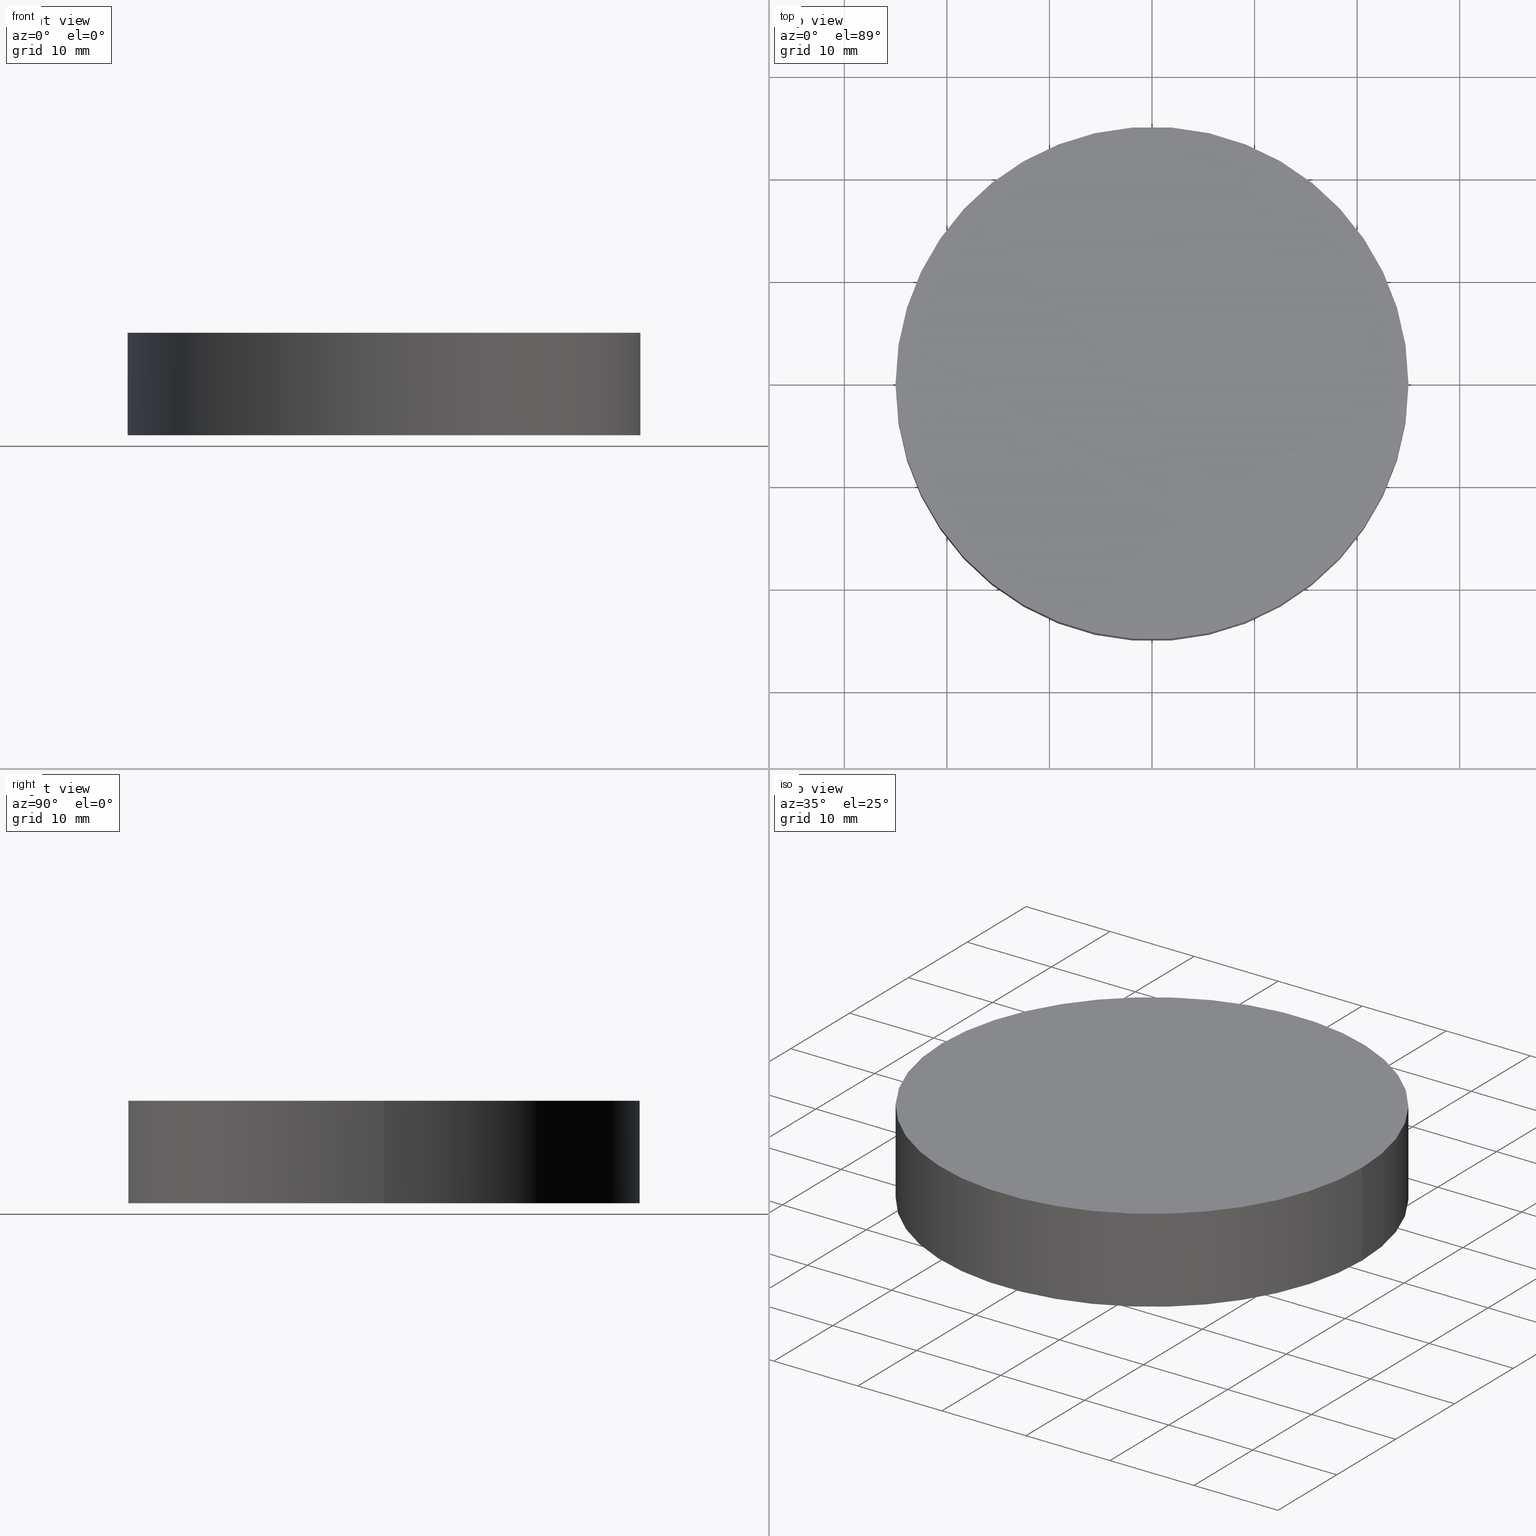
[diagram: canonical four-view strip — front | top / right | iso, engineering-drawing reading convention]
A machine part, canonical four-view strip (front | top / right | iso — engineering-drawing reading convention). The complete STEP part file that produces these views, byte-faithful:
ISO-10303-21;
HEADER;
FILE_DESCRIPTION (( 'STEP AP203' ),
    '1' );
FILE_NAME ('416009.STEP',
    '2019-08-21T07:05:28',
    ( '' ),
    ( '' ),
    'SwSTEP 2.0',
    'SolidWorks 2016',
    '' );
FILE_SCHEMA (( 'CONFIG_CONTROL_DESIGN' ));
ENDSEC;

DATA;
#1 = APPROVAL_PERSON_ORGANIZATION ( #207, #44, #176 ) ;
#2 = COORDINATED_UNIVERSAL_TIME_OFFSET ( 8, 0, .AHEAD. ) ;
#3 = AXIS2_PLACEMENT_3D ( 'NONE', #193, #73, #54 ) ;
#4 = PLANE ( 'NONE',  #58 ) ;
#5 =( NAMED_UNIT ( * ) SI_UNIT ( $, .STERADIAN. ) SOLID_ANGLE_UNIT ( ) );
#6 = LOCAL_TIME ( 15, 5, 28.00000000000000000, #62 ) ;
#7 = CC_DESIGN_DATE_AND_TIME_ASSIGNMENT ( #84, #139, ( #65 ) ) ;
#8 = CC_DESIGN_APPROVAL ( #175, ( #151 ) ) ;
#9 = APPROVAL_ROLE ( '' ) ;
#10 = APPROVAL_STATUS ( 'not_yet_approved' ) ;
#11 = EDGE_CURVE ( 'NONE', #81, #216, #66, .T. ) ;
#12 = CC_DESIGN_PERSON_AND_ORGANIZATION_ASSIGNMENT ( #15, #233, ( #151 ) ) ;
#13 = MECHANICAL_CONTEXT ( 'NONE', #211, 'mechanical' ) ;
#14 = PERSON ( 'δָ��', 'δָ��', 'δָ��', ('δָ��'), ('δָ��'), ('δָ��') ) ;
#15 = PERSON_AND_ORGANIZATION ( #14, #157 ) ;
#16 = SHAPE_DEFINITION_REPRESENTATION ( #241, #80 ) ;
#17 = CC_DESIGN_PERSON_AND_ORGANIZATION_ASSIGNMENT ( #167, #192, ( #147 ) ) ;
#18 = ORIENTED_EDGE ( 'NONE', *, *, #11, .F. ) ;
#19 = PERSON_AND_ORGANIZATION ( #14, #157 ) ;
#20 = FACE_OUTER_BOUND ( 'NONE', #127, .T. ) ;
#21 = APPROVAL ( #33, 'δָ��' ) ;
#22 = CALENDAR_DATE ( 2019, 21, 8 ) ;
#23 = DIRECTION ( 'NONE',  ( -1.000000000000000000, 0.0000000000000000000, 0.0000000000000000000 ) ) ;
#24 = ORIENTED_EDGE ( 'NONE', *, *, #43, .T. ) ;
#25 = DATE_AND_TIME ( #74, #181 ) ;
#26 = PLANE ( 'NONE',  #179 ) ;
#27 = FACE_OUTER_BOUND ( 'NONE', #88, .T. ) ;
#28 = CARTESIAN_POINT ( 'NONE',  ( 0.0000000000000000000, 0.0000000000000000000, 0.0000000000000000000 ) ) ;
#29 = CC_DESIGN_DATE_AND_TIME_ASSIGNMENT ( #31, #38, ( #151 ) ) ;
#30 = DIRECTION ( 'NONE',  ( 1.000000000000000000, 0.0000000000000000000, 0.0000000000000000000 ) ) ;
#31 = DATE_AND_TIME ( #83, #130 ) ;
#32 = LOCAL_TIME ( 15, 5, 28.00000000000000000, #184 ) ;
#33 = APPROVAL_STATUS ( 'not_yet_approved' ) ;
#34 = DIRECTION ( 'NONE',  ( 0.0000000000000000000, 0.0000000000000000000, 1.000000000000000000 ) ) ;
#35 = PERSON_AND_ORGANIZATION ( #14, #157 ) ;
#36 = APPROVAL_ROLE ( '' ) ;
#37 = CC_DESIGN_SECURITY_CLASSIFICATION ( #246, ( #75 ) ) ;
#38 = DATE_TIME_ROLE ( 'creation_date' ) ;
#39 = ORIENTED_EDGE ( 'NONE', *, *, #47, .T. ) ;
#40 = APPROVAL_DATE_TIME ( #93, #103 ) ;
#41 = COORDINATED_UNIVERSAL_TIME_OFFSET ( 8, 0, .AHEAD. ) ;
#42 = PRODUCT ( '416009', '416009', '', ( #13 ) ) ;
#43 = EDGE_CURVE ( 'NONE', #216, #81, #71, .T. ) ;
#44 = APPROVAL ( #10, 'δָ��' ) ;
#45 = PERSON_AND_ORGANIZATION ( #14, #157 ) ;
#46 = APPROVAL_DATE_TIME ( #249, #21 ) ;
#47 = EDGE_CURVE ( 'NONE', #145, #216, #163, .T. ) ;
#48 = CARTESIAN_POINT ( 'NONE',  ( 0.0000000000000000000, 0.0000000000000000000, 10.00000000000000000 ) ) ;
#49 = CARTESIAN_POINT ( 'NONE',  ( 0.0000000000000000000, 0.0000000000000000000, 10.00000000000000000 ) ) ;
#50 = VECTOR ( 'NONE', #219, 1000.000000000000000 ) ;
#51 = APPLICATION_PROTOCOL_DEFINITION ( 'international standard', 'config_control_design', 1994, #158 ) ;
#52 = CALENDAR_DATE ( 2019, 21, 8 ) ;
#53 = AXIS2_PLACEMENT_3D ( 'NONE', #28, #172, #114 ) ;
#54 = DIRECTION ( 'NONE',  ( 1.000000000000000000, 0.0000000000000000000, 0.0000000000000000000 ) ) ;
#55 = MECHANICAL_CONTEXT ( 'NONE', #158, 'mechanical' ) ;
#56 = PERSON_AND_ORGANIZATION_ROLE ( 'classification_officer' ) ;
#57 = DATE_AND_TIME ( #22, #253 ) ;
#58 = AXIS2_PLACEMENT_3D ( 'NONE', #169, #34, #119 ) ;
#59 = ORIENTED_EDGE ( 'NONE', *, *, #131, .T. ) ;
#60 = CC_DESIGN_DATE_AND_TIME_ASSIGNMENT ( #190, #177, ( #213 ) ) ;
#61 = PERSON_AND_ORGANIZATION_ROLE ( 'design_supplier' ) ;
#62 = COORDINATED_UNIVERSAL_TIME_OFFSET ( 8, 0, .AHEAD. ) ;
#63 = DATE_AND_TIME ( #203, #123 ) ;
#64 = UNCERTAINTY_MEASURE_WITH_UNIT (LENGTH_MEASURE( 1.000000000000000100E-005 ), #173, 'distance_accuracy_value', 'NONE');
#65 = PRODUCT_DEFINITION ( 'δ֪', '', #75, #106 ) ;
#66 = CIRCLE ( 'NONE', #53, 25.00000000000000000 ) ;
#67 = AXIS2_PLACEMENT_3D ( 'NONE', #48, #70, #204 ) ;
#68 = CYLINDRICAL_SURFACE ( 'NONE', #124, 25.00000000000000000 ) ;
#69 = DIRECTION ( 'NONE',  ( 0.0000000000000000000, 0.0000000000000000000, 1.000000000000000000 ) ) ;
#70 = DIRECTION ( 'NONE',  ( 0.0000000000000000000, 0.0000000000000000000, 1.000000000000000000 ) ) ;
#71 = CIRCLE ( 'NONE', #199, 25.00000000000000000 ) ;
#72 = CC_DESIGN_APPROVAL ( #231, ( #65 ) ) ;
#73 = DIRECTION ( 'NONE',  ( 0.0000000000000000000, 0.0000000000000000000, 1.000000000000000000 ) ) ;
#74 = CALENDAR_DATE ( 2019, 21, 8 ) ;
#75 = PRODUCT_DEFINITION_FORMATION_WITH_SPECIFIED_SOURCE ( '�κ�', '', #147, .NOT_KNOWN. ) ;
#76 = ORIENTED_EDGE ( 'NONE', *, *, #43, .F. ) ;
#77 = APPLICATION_PROTOCOL_DEFINITION ( 'international standard', 'config_control_design', 1994, #194 ) ;
#78 = PRODUCT_RELATED_PRODUCT_CATEGORY ( 'detail', '', ( #147 ) ) ;
#79 = COORDINATED_UNIVERSAL_TIME_OFFSET ( 8, 0, .AHEAD. ) ;
#80 = ADVANCED_BREP_SHAPE_REPRESENTATION ( '416009', ( #220, #3 ), #141 ) ;
#81 = VERTEX_POINT ( 'NONE', #156 ) ;
#82 = AXIS2_PLACEMENT_3D ( 'NONE', #112, #240, #174 ) ;
#83 = CALENDAR_DATE ( 2019, 21, 8 ) ;
#84 = DATE_AND_TIME ( #245, #251 ) ;
#85 = CARTESIAN_POINT ( 'NONE',  ( 0.0000000000000000000, 0.0000000000000000000, 10.00000000000000000 ) ) ;
#86 = CC_DESIGN_PERSON_AND_ORGANIZATION_ASSIGNMENT ( #133, #244, ( #65 ) ) ;
#87 = DATE_AND_TIME ( #195, #32 ) ;
#88 = EDGE_LOOP ( 'NONE', ( #186, #221, #59, #236 ) ) ;
#89 = CC_DESIGN_PERSON_AND_ORGANIZATION_ASSIGNMENT ( #212, #218, ( #213 ) ) ;
#90 = DIRECTION ( 'NONE',  ( -1.000000000000000000, 0.0000000000000000000, 0.0000000000000000000 ) ) ;
#91 = ORIENTED_EDGE ( 'NONE', *, *, #113, .F. ) ;
#92 = CC_DESIGN_PERSON_AND_ORGANIZATION_ASSIGNMENT ( #201, #146, ( #42 ) ) ;
#93 = DATE_AND_TIME ( #149, #102 ) ;
#94 = PERSON_AND_ORGANIZATION ( #14, #157 ) ;
#95 = CARTESIAN_POINT ( 'NONE',  ( 0.0000000000000000000, 0.0000000000000000000, 0.0000000000000000000 ) ) ;
#96 = PERSON_AND_ORGANIZATION_ROLE ( 'creator' ) ;
#97 = CC_DESIGN_PERSON_AND_ORGANIZATION_ASSIGNMENT ( #45, #61, ( #162 ) ) ;
#98 = APPROVAL_PERSON_ORGANIZATION ( #238, #107, #9 ) ;
#99 = CC_DESIGN_APPROVAL ( #21, ( #246 ) ) ;
#100 = APPROVAL_ROLE ( '' ) ;
#101 = EDGE_LOOP ( 'NONE', ( #91, #39, #24, #230 ) ) ;
#102 = LOCAL_TIME ( 15, 5, 28.00000000000000000, #79 ) ;
#103 = APPROVAL ( #159, 'δָ��' ) ;
#104 = PERSON_AND_ORGANIZATION ( #14, #157 ) ;
#105 = ADVANCED_FACE ( 'NONE', ( #183 ), #108, .T. ) ;
#106 = DESIGN_CONTEXT ( 'detailed design', #189, 'design' ) ;
#107 = APPROVAL ( #228, 'δָ��' ) ;
#108 = CYLINDRICAL_SURFACE ( 'NONE', #217, 25.00000000000000000 ) ;
#109 = PERSON_AND_ORGANIZATION ( #14, #157 ) ;
#110 = LOCAL_TIME ( 15, 5, 28.00000000000000000, #164 ) ;
#111 = CARTESIAN_POINT ( 'NONE',  ( 0.0000000000000000000, 0.0000000000000000000, 0.0000000000000000000 ) ) ;
#112 = CARTESIAN_POINT ( 'NONE',  ( 0.0000000000000000000, 0.0000000000000000000, 0.0000000000000000000 ) ) ;
#113 = EDGE_CURVE ( 'NONE', #145, #206, #170, .T. ) ;
#114 = DIRECTION ( 'NONE',  ( 1.000000000000000000, 0.0000000000000000000, 0.0000000000000000000 ) ) ;
#115 = CARTESIAN_POINT ( 'NONE',  ( 0.0000000000000000000, 0.0000000000000000000, 10.00000000000000000 ) ) ;
#116 = ORIENTED_EDGE ( 'NONE', *, *, #235, .T. ) ;
#117 = PRODUCT_RELATED_PRODUCT_CATEGORY ( 'detail', '', ( #42 ) ) ;
#118 = DIRECTION ( 'NONE',  ( 0.0000000000000000000, 0.0000000000000000000, 1.000000000000000000 ) ) ;
#119 = DIRECTION ( 'NONE',  ( 1.000000000000000000, 0.0000000000000000000, -0.0000000000000000000 ) ) ;
#120 = APPROVAL_STATUS ( 'not_yet_approved' ) ;
#121 = PERSON_AND_ORGANIZATION_ROLE ( 'design_supplier' ) ;
#122 = DATE_AND_TIME ( #155, #6 ) ;
#123 = LOCAL_TIME ( 15, 5, 28.00000000000000000, #2 ) ;
#124 = AXIS2_PLACEMENT_3D ( 'NONE', #49, #224, #90 ) ;
#125 = CLOSED_SHELL ( 'NONE', ( #105, #214, #161, #229 ) ) ;
#126 = COORDINATED_UNIVERSAL_TIME_OFFSET ( 8, 0, .AHEAD. ) ;
#127 = EDGE_LOOP ( 'NONE', ( #116, #182 ) ) ;
#128 = DATE_TIME_ROLE ( 'classification_date' ) ;
#129 = CC_DESIGN_APPROVAL ( #44, ( #162 ) ) ;
#130 = LOCAL_TIME ( 15, 5, 28.00000000000000000, #126 ) ;
#131 = EDGE_CURVE ( 'NONE', #206, #81, #252, .T. ) ;
#132 = APPROVAL_DATE_TIME ( #122, #175 ) ;
#133 = PERSON_AND_ORGANIZATION ( #14, #157 ) ;
#134 = CC_DESIGN_APPROVAL ( #107, ( #75 ) ) ;
#135 = CARTESIAN_POINT ( 'NONE',  ( 25.00000000000000000, 3.061616997868383000E-015, 10.00000000000000000 ) ) ;
#136 = APPROVAL_ROLE ( '' ) ;
#137 = DIRECTION ( 'NONE',  ( -0.0000000000000000000, -0.0000000000000000000, -1.000000000000000000 ) ) ;
#138 = CARTESIAN_POINT ( 'NONE',  ( -25.00000000000000000, 0.0000000000000000000, 10.00000000000000000 ) ) ;
#139 = DATE_TIME_ROLE ( 'creation_date' ) ;
#140 = PERSON_AND_ORGANIZATION ( #14, #157 ) ;
#141 =( GEOMETRIC_REPRESENTATION_CONTEXT ( 3 ) GLOBAL_UNCERTAINTY_ASSIGNED_CONTEXT ( ( #64 ) ) GLOBAL_UNIT_ASSIGNED_CONTEXT ( ( #173, #205, #5 ) ) REPRESENTATION_CONTEXT ( 'NONE', 'WORKASPACE' ) );
#142 = SECURITY_CLASSIFICATION_LEVEL ( 'unclassified' ) ;
#143 = CC_DESIGN_SECURITY_CLASSIFICATION ( #213, ( #162 ) ) ;
#144 = COORDINATED_UNIVERSAL_TIME_OFFSET ( 8, 0, .AHEAD. ) ;
#145 = VERTEX_POINT ( 'NONE', #135 ) ;
#146 = PERSON_AND_ORGANIZATION_ROLE ( 'design_owner' ) ;
#147 = PRODUCT ( '416009', '416009', '', ( #55 ) ) ;
#148 = CC_DESIGN_PERSON_AND_ORGANIZATION_ASSIGNMENT ( #104, #121, ( #75 ) ) ;
#149 = CALENDAR_DATE ( 2019, 21, 8 ) ;
#150 = APPROVAL_PERSON_ORGANIZATION ( #196, #175, #165 ) ;
#151 = PRODUCT_DEFINITION ( 'δ֪', '', #162, #202 ) ;
#152 = CC_DESIGN_DATE_AND_TIME_ASSIGNMENT ( #25, #128, ( #246 ) ) ;
#153 = SECURITY_CLASSIFICATION_LEVEL ( 'unclassified' ) ;
#154 = DIRECTION ( 'NONE',  ( 1.000000000000000000, 0.0000000000000000000, -0.0000000000000000000 ) ) ;
#155 = CALENDAR_DATE ( 2019, 21, 8 ) ;
#156 = CARTESIAN_POINT ( 'NONE',  ( -25.00000000000000000, 0.0000000000000000000, 0.0000000000000000000 ) ) ;
#157 = ORGANIZATION ( 'δָ��', 'δָ��', '' ) ;
#158 = APPLICATION_CONTEXT ( 'configuration controlled 3d designs of mechanical parts and assemblies' ) ;
#159 = APPROVAL_STATUS ( 'not_yet_approved' ) ;
#160 = APPLICATION_PROTOCOL_DEFINITION ( 'international standard', 'config_control_design', 1994, #211 ) ;
#161 = ADVANCED_FACE ( 'NONE', ( #20 ), #4, .T. ) ;
#162 = PRODUCT_DEFINITION_FORMATION_WITH_SPECIFIED_SOURCE ( '�κ�', '', #42, .NOT_KNOWN. ) ;
#163 = LINE ( 'NONE', #226, #215 ) ;
#164 = COORDINATED_UNIVERSAL_TIME_OFFSET ( 8, 0, .AHEAD. ) ;
#165 = APPROVAL_ROLE ( '' ) ;
#166 = COORDINATED_UNIVERSAL_TIME_OFFSET ( 8, 0, .AHEAD. ) ;
#167 = PERSON_AND_ORGANIZATION ( #14, #157 ) ;
#168 = DIRECTION ( 'NONE',  ( -0.0000000000000000000, -0.0000000000000000000, -1.000000000000000000 ) ) ;
#169 = CARTESIAN_POINT ( 'NONE',  ( 0.0000000000000000000, 0.0000000000000000000, 10.00000000000000000 ) ) ;
#170 = CIRCLE ( 'NONE', #67, 25.00000000000000000 ) ;
#171 = CC_DESIGN_APPROVAL ( #103, ( #213 ) ) ;
#172 = DIRECTION ( 'NONE',  ( 0.0000000000000000000, 0.0000000000000000000, 1.000000000000000000 ) ) ;
#173 =( LENGTH_UNIT ( ) NAMED_UNIT ( * ) SI_UNIT ( .MILLI., .METRE. ) );
#174 = DIRECTION ( 'NONE',  ( 1.000000000000000000, 0.0000000000000000000, 0.0000000000000000000 ) ) ;
#175 = APPROVAL ( #248, 'δָ��' ) ;
#176 = APPROVAL_ROLE ( '' ) ;
#177 = DATE_TIME_ROLE ( 'classification_date' ) ;
#178 = EDGE_LOOP ( 'NONE', ( #18, #76 ) ) ;
#179 = AXIS2_PLACEMENT_3D ( 'NONE', #95, #118, #154 ) ;
#180 = PERSON_AND_ORGANIZATION_ROLE ( 'creator' ) ;
#181 = LOCAL_TIME ( 15, 5, 28.00000000000000000, #144 ) ;
#182 = ORIENTED_EDGE ( 'NONE', *, *, #113, .T. ) ;
#183 = FACE_OUTER_BOUND ( 'NONE', #101, .T. ) ;
#184 = COORDINATED_UNIVERSAL_TIME_OFFSET ( 8, 0, .AHEAD. ) ;
#185 = APPROVAL_PERSON_ORGANIZATION ( #94, #231, #136 ) ;
#186 = ORIENTED_EDGE ( 'NONE', *, *, #47, .F. ) ;
#187 = CARTESIAN_POINT ( 'NONE',  ( 25.00000000000000000, 3.061616997868383000E-015, 0.0000000000000000000 ) ) ;
#188 = CARTESIAN_POINT ( 'NONE',  ( -25.00000000000000000, 0.0000000000000000000, 10.00000000000000000 ) ) ;
#189 = APPLICATION_CONTEXT ( 'configuration controlled 3d designs of mechanical parts and assemblies' ) ;
#190 = DATE_AND_TIME ( #232, #250 ) ;
#191 = CC_DESIGN_PERSON_AND_ORGANIZATION_ASSIGNMENT ( #19, #180, ( #162 ) ) ;
#192 = PERSON_AND_ORGANIZATION_ROLE ( 'design_owner' ) ;
#193 = CARTESIAN_POINT ( 'NONE',  ( 0.0000000000000000000, 0.0000000000000000000, 0.0000000000000000000 ) ) ;
#194 = APPLICATION_CONTEXT ( 'configuration controlled 3d designs of mechanical parts and assemblies' ) ;
#195 = CALENDAR_DATE ( 2019, 21, 8 ) ;
#196 = PERSON_AND_ORGANIZATION ( #14, #157 ) ;
#197 = PRODUCT_DEFINITION_SHAPE ( 'NONE', 'NONE',  #65 ) ;
#198 = APPROVAL_DATE_TIME ( #63, #231 ) ;
#199 = AXIS2_PLACEMENT_3D ( 'NONE', #111, #69, #208 ) ;
#200 = APPROVAL_PERSON_ORGANIZATION ( #109, #103, #36 ) ;
#201 = PERSON_AND_ORGANIZATION ( #14, #157 ) ;
#202 = DESIGN_CONTEXT ( 'detailed design', #194, 'design' ) ;
#203 = CALENDAR_DATE ( 2019, 21, 8 ) ;
#204 = DIRECTION ( 'NONE',  ( 1.000000000000000000, 0.0000000000000000000, 0.0000000000000000000 ) ) ;
#205 =( NAMED_UNIT ( * ) PLANE_ANGLE_UNIT ( ) SI_UNIT ( $, .RADIAN. ) );
#206 = VERTEX_POINT ( 'NONE', #138 ) ;
#207 = PERSON_AND_ORGANIZATION ( #14, #157 ) ;
#208 = DIRECTION ( 'NONE',  ( 1.000000000000000000, 0.0000000000000000000, 0.0000000000000000000 ) ) ;
#209 = APPROVAL_PERSON_ORGANIZATION ( #243, #21, #100 ) ;
#210 = APPLICATION_PROTOCOL_DEFINITION ( 'international standard', 'config_control_design', 1994, #189 ) ;
#211 = APPLICATION_CONTEXT ( 'configuration controlled 3d designs of mechanical parts and assemblies' ) ;
#212 = PERSON_AND_ORGANIZATION ( #14, #157 ) ;
#213 = SECURITY_CLASSIFICATION ( '', '', #142 ) ;
#214 = ADVANCED_FACE ( 'NONE', ( #27 ), #68, .T. ) ;
#215 = VECTOR ( 'NONE', #168, 1000.000000000000000 ) ;
#216 = VERTEX_POINT ( 'NONE', #187 ) ;
#217 = AXIS2_PLACEMENT_3D ( 'NONE', #85, #137, #23 ) ;
#218 = PERSON_AND_ORGANIZATION_ROLE ( 'classification_officer' ) ;
#219 = DIRECTION ( 'NONE',  ( -0.0000000000000000000, -0.0000000000000000000, -1.000000000000000000 ) ) ;
#220 = MANIFOLD_SOLID_BREP ( '͹̨-����1', #125 ) ;
#221 = ORIENTED_EDGE ( 'NONE', *, *, #235, .F. ) ;
#222 = COORDINATED_UNIVERSAL_TIME_OFFSET ( 8, 0, .AHEAD. ) ;
#223 = FACE_OUTER_BOUND ( 'NONE', #178, .T. ) ;
#224 = DIRECTION ( 'NONE',  ( -0.0000000000000000000, -0.0000000000000000000, -1.000000000000000000 ) ) ;
#225 = AXIS2_PLACEMENT_3D ( 'NONE', #115, #242, #30 ) ;
#226 = CARTESIAN_POINT ( 'NONE',  ( 25.00000000000000000, 3.061616997868383000E-015, 10.00000000000000000 ) ) ;
#227 = CIRCLE ( 'NONE', #225, 25.00000000000000000 ) ;
#228 = APPROVAL_STATUS ( 'not_yet_approved' ) ;
#229 = ADVANCED_FACE ( 'NONE', ( #223 ), #26, .F. ) ;
#230 = ORIENTED_EDGE ( 'NONE', *, *, #131, .F. ) ;
#231 = APPROVAL ( #120, 'δָ��' ) ;
#232 = CALENDAR_DATE ( 2019, 21, 8 ) ;
#233 = PERSON_AND_ORGANIZATION_ROLE ( 'creator' ) ;
#234 = APPROVAL_DATE_TIME ( #87, #107 ) ;
#235 = EDGE_CURVE ( 'NONE', #206, #145, #227, .T. ) ;
#236 = ORIENTED_EDGE ( 'NONE', *, *, #11, .T. ) ;
#237 = CC_DESIGN_PERSON_AND_ORGANIZATION_ASSIGNMENT ( #140, #96, ( #75 ) ) ;
#238 = PERSON_AND_ORGANIZATION ( #14, #157 ) ;
#239 = CC_DESIGN_PERSON_AND_ORGANIZATION_ASSIGNMENT ( #35, #56, ( #246 ) ) ;
#240 = DIRECTION ( 'NONE',  ( 0.0000000000000000000, 0.0000000000000000000, 1.000000000000000000 ) ) ;
#241 = PRODUCT_DEFINITION_SHAPE ( 'NONE', 'NONE',  #151 ) ;
#242 = DIRECTION ( 'NONE',  ( 0.0000000000000000000, 0.0000000000000000000, 1.000000000000000000 ) ) ;
#243 = PERSON_AND_ORGANIZATION ( #14, #157 ) ;
#244 = PERSON_AND_ORGANIZATION_ROLE ( 'creator' ) ;
#245 = CALENDAR_DATE ( 2019, 21, 8 ) ;
#246 = SECURITY_CLASSIFICATION ( '', '', #153 ) ;
#247 = APPROVAL_DATE_TIME ( #57, #44 ) ;
#248 = APPROVAL_STATUS ( 'not_yet_approved' ) ;
#249 = DATE_AND_TIME ( #52, #110 ) ;
#250 = LOCAL_TIME ( 15, 5, 28.00000000000000000, #166 ) ;
#251 = LOCAL_TIME ( 15, 5, 28.00000000000000000, #41 ) ;
#252 = LINE ( 'NONE', #188, #50 ) ;
#253 = LOCAL_TIME ( 15, 5, 28.00000000000000000, #222 ) ;
ENDSEC;
END-ISO-10303-21;
